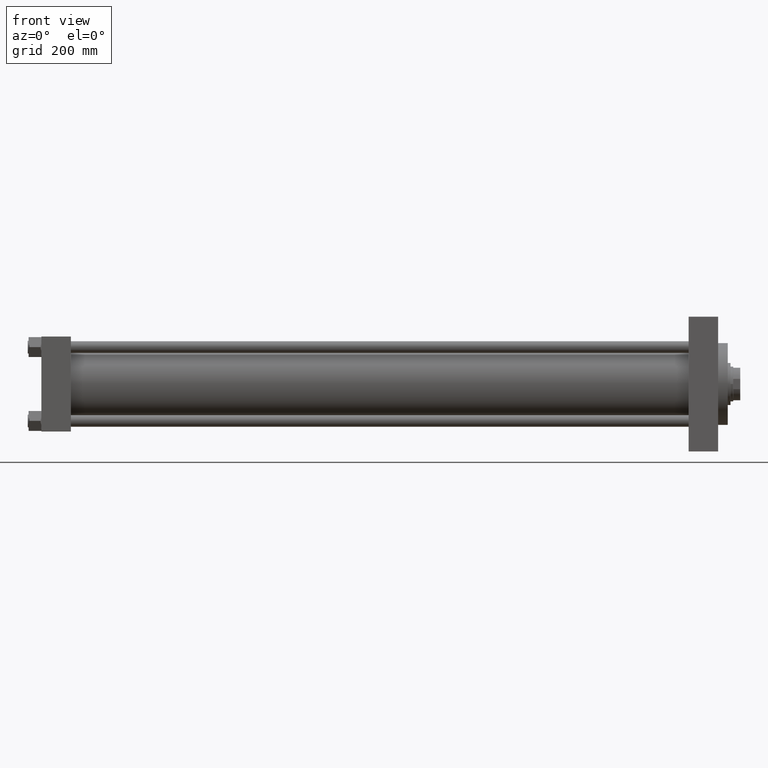
[diagram: clean part render]
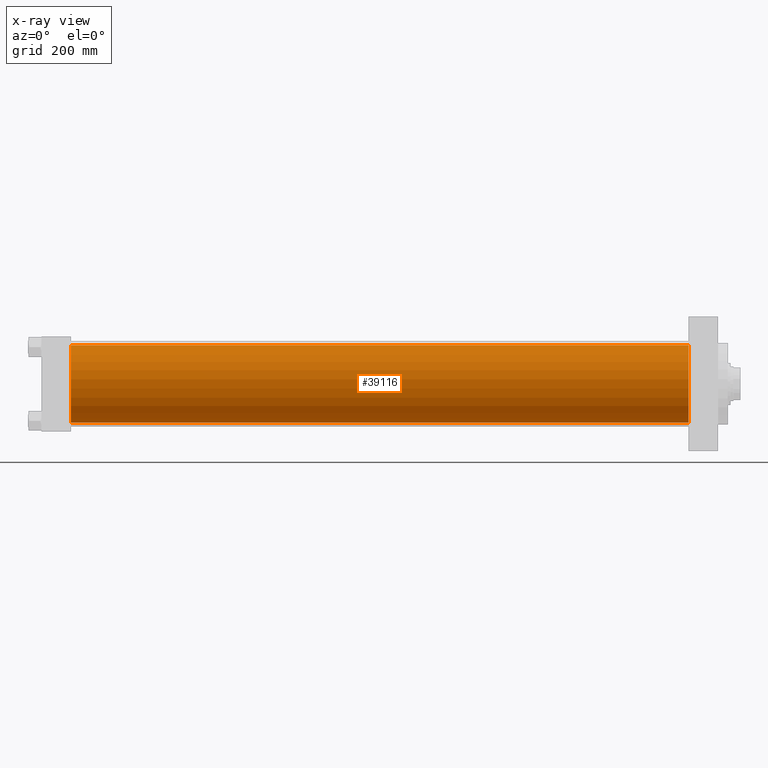
[diagram: x-ray — body ghosted, one internal face saturated and labeled with its STEP entity id]
A machine part, front view, then the same camera in x-ray: the body is ghosted and one INTERNAL B-rep face — a face not visible from any outside direction — is saturated and labeled: STEP entity #39116.
In plain terms, the highlighted cylindrical surface (partial cylindrical patch) has radius 100 mm, axis along (-1, -0, -0).
Its self-contained STEP definition (entity closure, byte-faithful):
#1620 = CIRCLE ( 'NONE', #30077, 100.0000000000000000 ) ;
#1776 = LINE ( 'NONE', #2252, #27990 ) ;
#2252 = CARTESIAN_POINT ( 'NONE',  ( 1668.000000000000227, 9.644382777508321529E-15, -100.0000000000000000 ) ) ;
#4990 = ORIENTED_EDGE ( 'NONE', *, *, #25019, .F. ) ;
#5289 = ORIENTED_EDGE ( 'NONE', *, *, #38886, .T. ) ;
#7762 = CARTESIAN_POINT ( 'NONE',  ( 1668.000000000000227, -2.602085213965210642E-15, 0.000000000000000000 ) ) ;
#8470 = CARTESIAN_POINT ( 'NONE',  ( 1668.000000000000227, -2.602085213965210642E-15, 0.000000000000000000 ) ) ;
#9825 = CIRCLE ( 'NONE', #25970, 100.0000000000000000 ) ;
#10336 = CARTESIAN_POINT ( 'NONE',  ( 1668.000000000000227, -2.602085213965210642E-15, 100.0000000000000000 ) ) ;
#13529 = CARTESIAN_POINT ( 'NONE',  ( 1668.000000000000227, -2.602085213965210642E-15, 100.0000000000000000 ) ) ;
#13808 = VECTOR ( 'NONE', #47181, 1000.000000000000000 ) ;
#15678 = DIRECTION ( 'NONE',  ( 0.000000000000000000, 0.000000000000000000, 1.000000000000000000 ) ) ;
#15758 = VERTEX_POINT ( 'NONE', #31200 ) ;
#19720 = ORIENTED_EDGE ( 'NONE', *, *, #28091, .F. ) ;
#20779 = DIRECTION ( 'NONE',  ( 1.000000000000000000, 0.000000000000000000, 0.000000000000000000 ) ) ;
#20903 = EDGE_CURVE ( 'NONE', #23114, #28375, #9825, .T. ) ;
#22633 = AXIS2_PLACEMENT_3D ( 'NONE', #8470, #45308, #15678 ) ;
#23114 = VERTEX_POINT ( 'NONE', #13529 ) ;
#23449 = VERTEX_POINT ( 'NONE', #33432 ) ;
#23656 = ORIENTED_EDGE ( 'NONE', *, *, #20903, .T. ) ;
#25019 = EDGE_CURVE ( 'NONE', #23114, #23449, #28633, .T. ) ;
#25970 = AXIS2_PLACEMENT_3D ( 'NONE', #7762, #30163, #26056 ) ;
#26056 = DIRECTION ( 'NONE',  ( 0.000000000000000000, 0.000000000000000000, -1.000000000000000000 ) ) ;
#26522 = CYLINDRICAL_SURFACE ( 'NONE', #22633, 100.0000000000000000 ) ;
#27990 = VECTOR ( 'NONE', #34520, 1000.000000000000000 ) ;
#28091 = EDGE_CURVE ( 'NONE', #23449, #15758, #1620, .T. ) ;
#28375 = VERTEX_POINT ( 'NONE', #37364 ) ;
#28633 = LINE ( 'NONE', #10336, #13808 ) ;
#30077 = AXIS2_PLACEMENT_3D ( 'NONE', #39091, #20779, #34983 ) ;
#30163 = DIRECTION ( 'NONE',  ( 1.000000000000000000, 0.000000000000000000, 0.000000000000000000 ) ) ;
#31200 = CARTESIAN_POINT ( 'NONE',  ( 76.00000000000000000, 9.644382777508321529E-15, -100.0000000000000000 ) ) ;
#33432 = CARTESIAN_POINT ( 'NONE',  ( 76.00000000000000000, -2.602085213965210642E-15, 100.0000000000000000 ) ) ;
#34520 = DIRECTION ( 'NONE',  ( -1.000000000000000000, -0.000000000000000000, -0.000000000000000000 ) ) ;
#34983 = DIRECTION ( 'NONE',  ( 0.000000000000000000, 0.000000000000000000, -1.000000000000000000 ) ) ;
#37364 = CARTESIAN_POINT ( 'NONE',  ( 1668.000000000000227, 9.644382777508321529E-15, -100.0000000000000000 ) ) ;
#37508 = EDGE_LOOP ( 'NONE', ( #23656, #5289, #19720, #4990 ) ) ;
#38886 = EDGE_CURVE ( 'NONE', #28375, #15758, #1776, .T. ) ;
#39091 = CARTESIAN_POINT ( 'NONE',  ( 76.00000000000000000, -2.602085213965210642E-15, 0.000000000000000000 ) ) ;
#39116 = ADVANCED_FACE ( 'NONE', ( #41466 ), #26522, .F. ) ;
#41466 = FACE_OUTER_BOUND ( 'NONE', #37508, .T. ) ;
#45308 = DIRECTION ( 'NONE',  ( -1.000000000000000000, -0.000000000000000000, -0.000000000000000000 ) ) ;
#47181 = DIRECTION ( 'NONE',  ( -1.000000000000000000, -0.000000000000000000, -0.000000000000000000 ) ) ;